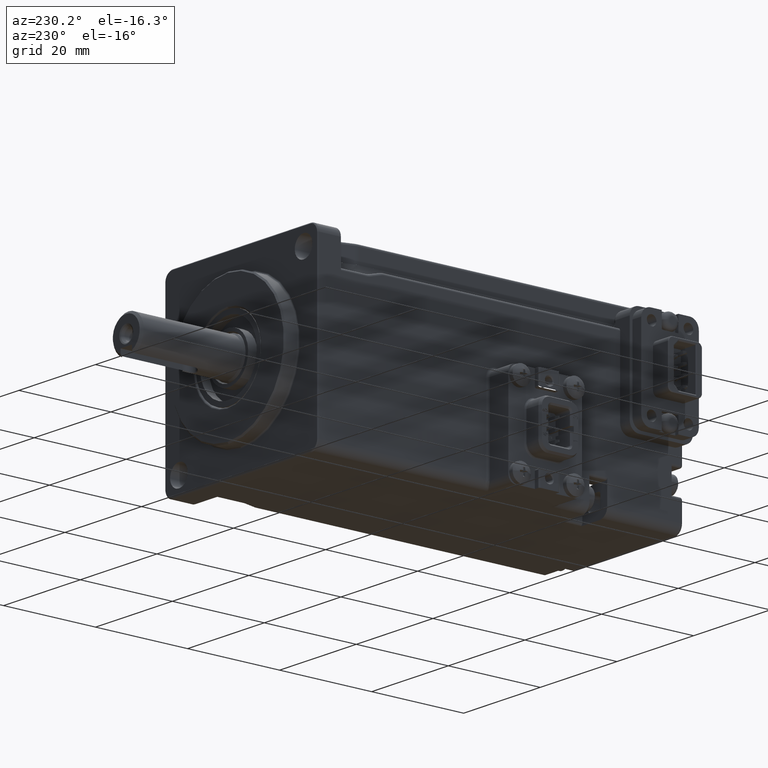
[diagram: clean part render]
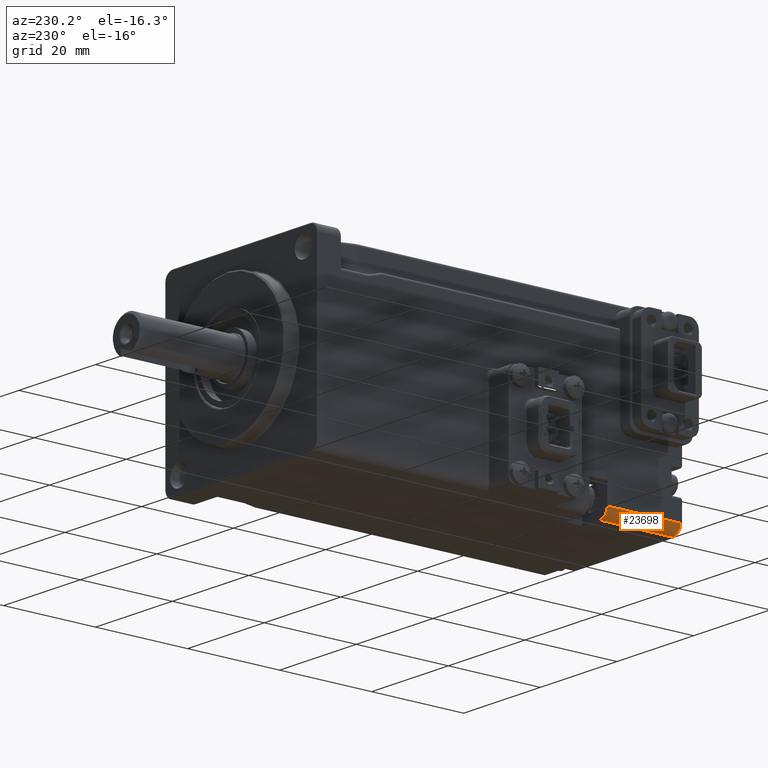
[diagram: same view with one face highlighted and labeled with its STEP entity id]
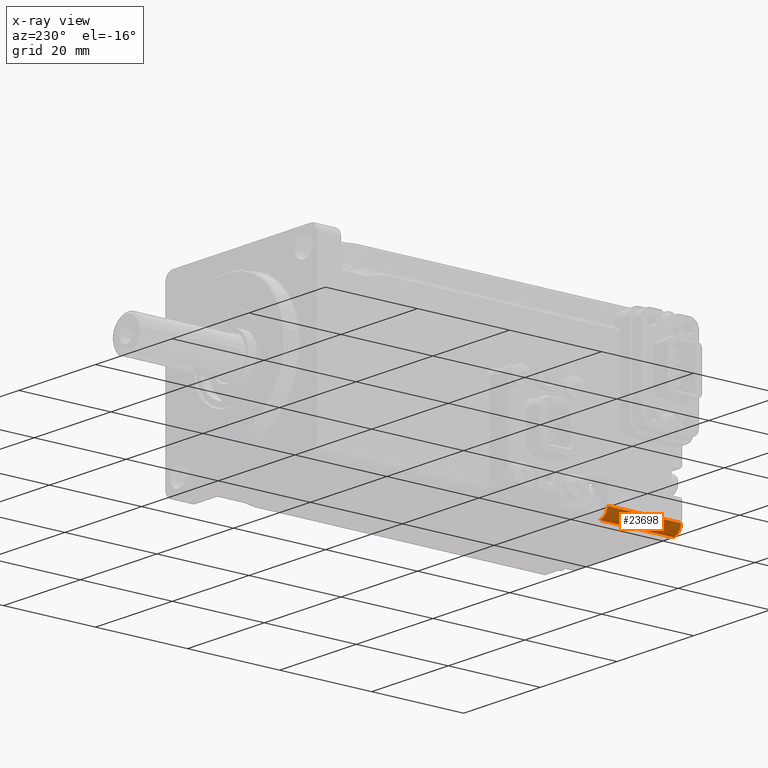
[diagram: x-ray of the same camera — body ghosted, the highlighted face saturated]
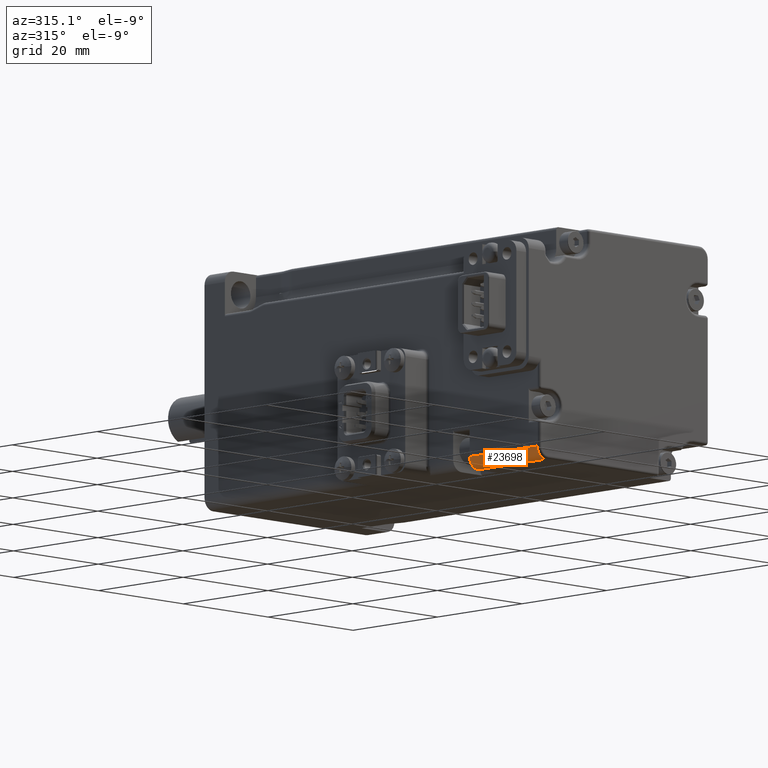
[diagram: same view with one face highlighted and labeled with its STEP entity id]
A machine part, auxiliary view. The second image highlights one B-rep face of the part: STEP entity #23698.
The next image is the same camera in x-ray: the body ghosted, the highlighted face saturated — about 0% of this face is hidden behind the body in this view.
A second angle (auxiliary view) of the same face is appended — the face is thin or edge-on in the first view.
In plain terms, the highlighted cylindrical surface (edge-blend (fillet) strip) has radius 2 mm, axis along (0, 1, -0).
Its self-contained STEP definition (entity closure, byte-faithful):
#694 = CARTESIAN_POINT ( 'NONE',  ( -18.00000000000001421, -23.89999999999998792, -18.00000000000001421 ) ) ;
#746 = DIRECTION ( 'NONE',  ( 6.123233995736767268E-17, 1.000000000000000000, -2.092431894514851256E-18 ) ) ;
#775 = CARTESIAN_POINT ( 'NONE',  ( -18.00000000000001421, -7.899999999999990585, -20.00000000000000355 ) ) ;
#1038 = VECTOR ( 'NONE', #22003, 1000.000000000000000 ) ;
#1671 = EDGE_LOOP ( 'NONE', ( #11672, #18096, #19529, #12978 ) ) ;
#2175 = CIRCLE ( 'NONE', #12081, 2.000000000000001776 ) ;
#3036 = AXIS2_PLACEMENT_3D ( 'NONE', #694, #4585, #24621 ) ;
#3068 = EDGE_CURVE ( 'NONE', #8806, #8223, #23574, .T. ) ;
#4034 = VECTOR ( 'NONE', #11938, 1000.000000000000000 ) ;
#4295 = LINE ( 'NONE', #24687, #1038 ) ;
#4513 = CARTESIAN_POINT ( 'NONE',  ( -18.00000000000001421, -4.499999999999990230, -18.00000000000001421 ) ) ;
#4585 = DIRECTION ( 'NONE',  ( 6.123233995736767268E-17, 1.000000000000000000, -2.092431894514851256E-18 ) ) ;
#6699 = DIRECTION ( 'NONE',  ( 0.000000000000000000, 0.000000000000000000, -1.000000000000000000 ) ) ;
#7694 = VERTEX_POINT ( 'NONE', #20410 ) ;
#8223 = VERTEX_POINT ( 'NONE', #775 ) ;
#8806 = VERTEX_POINT ( 'NONE', #10901 ) ;
#8823 = CARTESIAN_POINT ( 'NONE',  ( -18.00000000000001421, -7.899999999999990585, -18.00000000000001421 ) ) ;
#8850 = EDGE_CURVE ( 'NONE', #8223, #7694, #2175, .T. ) ;
#8965 = DIRECTION ( 'NONE',  ( 0.000000000000000000, 0.000000000000000000, -1.000000000000000000 ) ) ;
#9228 = DIRECTION ( 'NONE',  ( 6.123233995736767268E-17, 1.000000000000000000, -2.092431894514851256E-18 ) ) ;
#10901 = CARTESIAN_POINT ( 'NONE',  ( -18.00000000000001421, -23.89999999999998792, -20.00000000000001066 ) ) ;
#11672 = ORIENTED_EDGE ( 'NONE', *, *, #3068, .F. ) ;
#11938 = DIRECTION ( 'NONE',  ( 6.123233995736767268E-17, 1.000000000000000000, -2.092431894514851256E-18 ) ) ;
#12081 = AXIS2_PLACEMENT_3D ( 'NONE', #8823, #9228, #8965 ) ;
#12978 = ORIENTED_EDGE ( 'NONE', *, *, #8850, .F. ) ;
#14064 = FACE_OUTER_BOUND ( 'NONE', #1671, .T. ) ;
#14920 = VERTEX_POINT ( 'NONE', #25285 ) ;
#17929 = EDGE_CURVE ( 'NONE', #7694, #14920, #4295, .T. ) ;
#18096 = ORIENTED_EDGE ( 'NONE', *, *, #23043, .T. ) ;
#18277 = CIRCLE ( 'NONE', #3036, 2.000000000000001776 ) ;
#18309 = AXIS2_PLACEMENT_3D ( 'NONE', #4513, #746, #6699 ) ;
#19416 = CARTESIAN_POINT ( 'NONE',  ( -18.00000000000001421, -7.899999999999990585, -20.00000000000001066 ) ) ;
#19529 = ORIENTED_EDGE ( 'NONE', *, *, #17929, .F. ) ;
#20410 = CARTESIAN_POINT ( 'NONE',  ( -20.00000000000001066, -7.899999999999990585, -18.00000000000001421 ) ) ;
#22003 = DIRECTION ( 'NONE',  ( -6.123233995736767268E-17, -1.000000000000000000, 2.092431894514851256E-18 ) ) ;
#22081 = CYLINDRICAL_SURFACE ( 'NONE', #18309, 2.000000000000001776 ) ;
#23043 = EDGE_CURVE ( 'NONE', #8806, #14920, #18277, .T. ) ;
#23574 = LINE ( 'NONE', #19416, #4034 ) ;
#23698 = ADVANCED_FACE ( 'NONE', ( #14064 ), #22081, .T. ) ;
#24621 = DIRECTION ( 'NONE',  ( 0.000000000000000000, 0.000000000000000000, -1.000000000000000000 ) ) ;
#24687 = CARTESIAN_POINT ( 'NONE',  ( -20.00000000000001066, -24.39999999999998792, -18.00000000000001421 ) ) ;
#25285 = CARTESIAN_POINT ( 'NONE',  ( -20.00000000000001066, -23.89999999999998792, -18.00000000000001421 ) ) ;